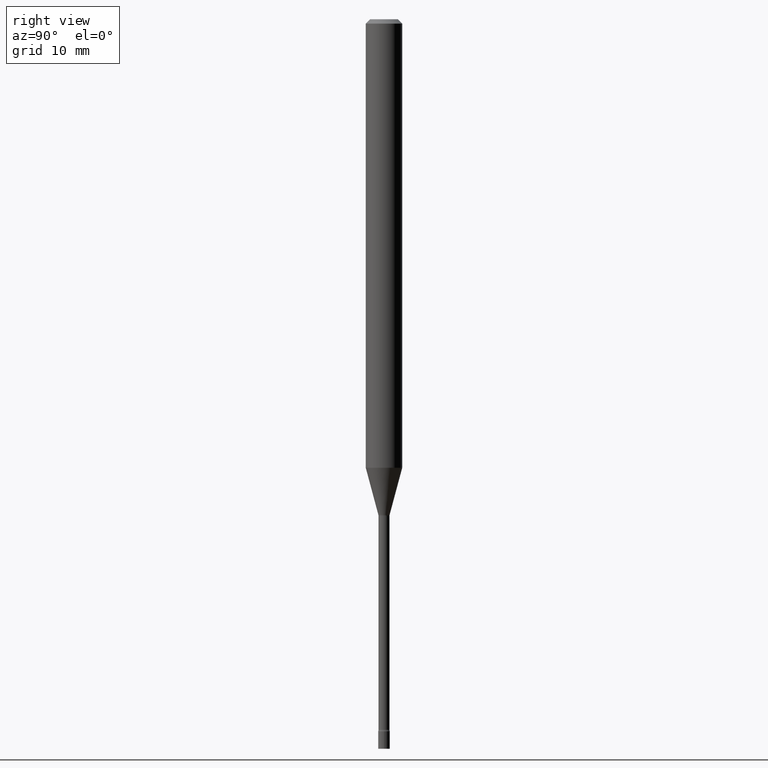
[diagram: clean part render]
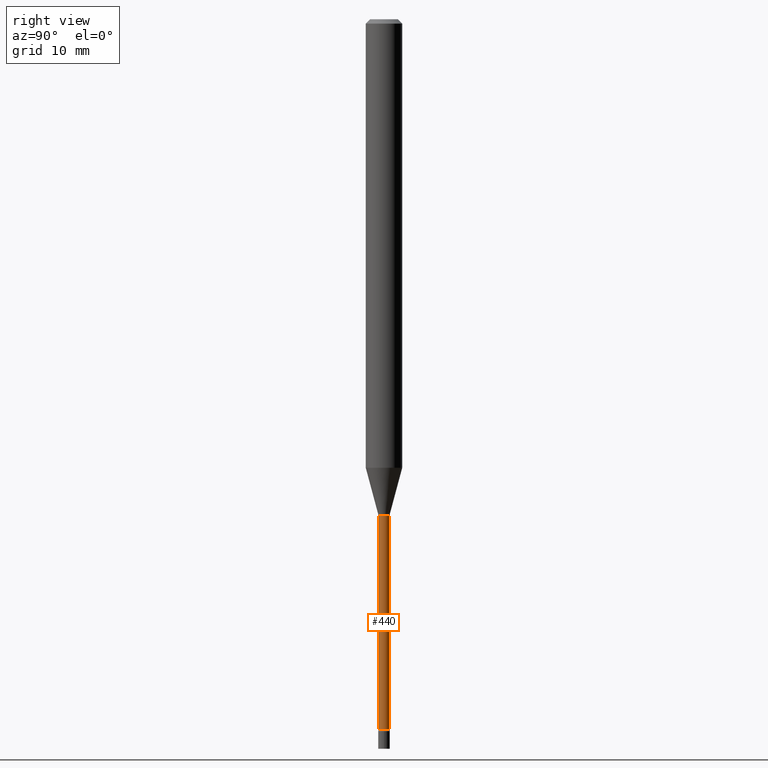
[diagram: same view with one face highlighted and labeled with its STEP entity id]
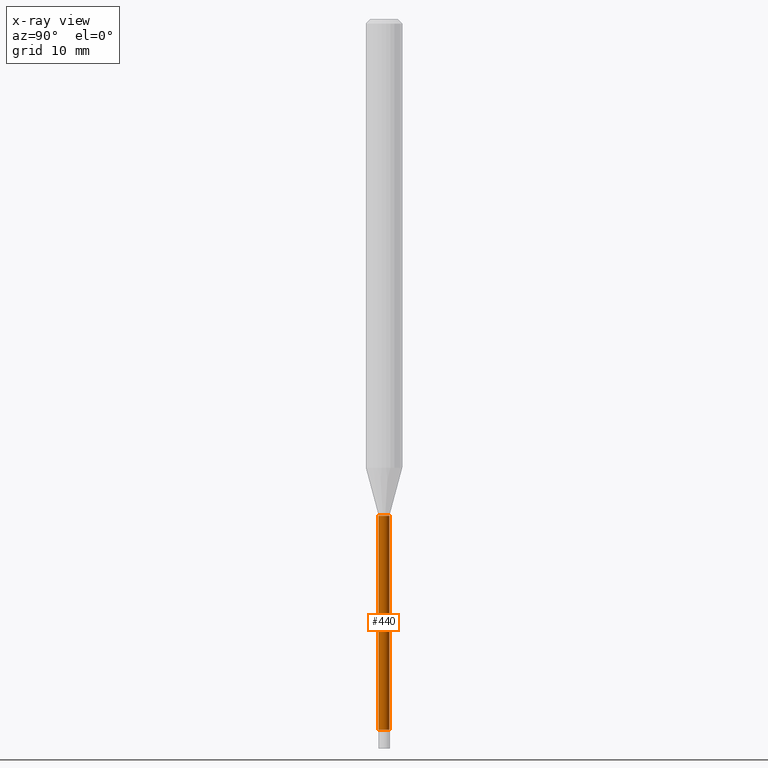
[diagram: x-ray of the same camera — body ghosted, the highlighted face saturated]
A machine part, right view. The second image highlights one B-rep face of the part: STEP entity #440.
The next image is the same camera in x-ray: the body ghosted, the highlighted face saturated — about 0% of this face is hidden behind the body in this view.
In plain terms, the highlighted cylindrical surface (edge-blend (fillet) strip) has radius 0.4775 mm, axis along (-0, 0, 1).
Its self-contained STEP definition (entity closure, byte-faithful):
#8 = VERTEX_POINT ( 'NONE', #252 ) ;
#17 = LINE ( 'NONE', #64, #121 ) ;
#19 = VERTEX_POINT ( 'NONE', #500 ) ;
#50 = FACE_OUTER_BOUND ( 'NONE', #401, .T. ) ;
#55 = DIRECTION ( 'NONE',  ( -2.445425091962523904E-29, 3.491543940097986004E-15, 1.000000000000000000 ) ) ;
#63 = EDGE_CURVE ( 'NONE', #8, #128, #17, .T. ) ;
#64 = CARTESIAN_POINT ( 'NONE',  ( -1.312796983405021220E-16, -0.01880000000000004584, 6.564102607384229912E-17 ) ) ;
#69 = DIRECTION ( 'NONE',  ( -6.982962677686265922E-15, -1.000000000000000000, 0.000000000000000000 ) ) ;
#87 = DIRECTION ( 'NONE',  ( -2.445425091962523904E-29, 3.491543940097986004E-15, 1.000000000000000000 ) ) ;
#89 = LINE ( 'NONE', #99, #169 ) ;
#99 = CARTESIAN_POINT ( 'NONE',  ( 1.335820343228991607E-16, 0.01880000000000004584, -6.564102607384229912E-17 ) ) ;
#121 = VECTOR ( 'NONE', #138, 39.37007874015748143 ) ;
#128 = VERTEX_POINT ( 'NONE', #270 ) ;
#130 = CARTESIAN_POINT ( 'NONE',  ( 0.000000000000000000, 0.000000000000000000, 0.000000000000000000 ) ) ;
#138 = DIRECTION ( 'NONE',  ( -2.445425091962523904E-29, 3.491543940097986004E-15, 1.000000000000000000 ) ) ;
#160 = AXIS2_PLACEMENT_3D ( 'NONE', #352, #429, #69 ) ;
#169 = VECTOR ( 'NONE', #55, 39.37007874015748143 ) ;
#198 = ORIENTED_EDGE ( 'NONE', *, *, #63, .F. ) ;
#235 = CIRCLE ( 'NONE', #512, 0.01880000000000009788 ) ;
#244 = DIRECTION ( 'NONE',  ( -6.982962677686265922E-15, -1.000000000000000000, 3.491543940097986004E-15 ) ) ;
#252 = CARTESIAN_POINT ( 'NONE',  ( -1.312796983404429574E-16, -0.01880000000000859456, -2.434121224617320944 ) ) ;
#264 = EDGE_CURVE ( 'NONE', #128, #452, #357, .T. ) ;
#270 = CARTESIAN_POINT ( 'NONE',  ( -1.312796983404601645E-16, -0.01880000000000594043, -1.701974787463810923 ) ) ;
#328 = DIRECTION ( 'NONE',  ( -6.982962677686265133E-15, -1.000000000000000000, 0.000000000000000000 ) ) ;
#340 = CARTESIAN_POINT ( 'NONE',  ( 1.335820343229586704E-16, 0.01879999999999405758, -1.701974787463810923 ) ) ;
#346 = AXIS2_PLACEMENT_3D ( 'NONE', #130, #87, #244 ) ;
#349 = EDGE_CURVE ( 'NONE', #8, #19, #235, .T. ) ;
#352 = CARTESIAN_POINT ( 'NONE',  ( 4.162051851151586637E-29, -5.942519755368827398E-15, -1.701974787463810923 ) ) ;
#357 = CIRCLE ( 'NONE', #160, 0.01879999999999999727 ) ;
#360 = ORIENTED_EDGE ( 'NONE', *, *, #264, .F. ) ;
#369 = DIRECTION ( 'NONE',  ( -2.445425091962523904E-29, 3.491543940097986004E-15, 1.000000000000000000 ) ) ;
#401 = EDGE_LOOP ( 'NONE', ( #516, #457, #360, #198 ) ) ;
#429 = DIRECTION ( 'NONE',  ( -2.445425091962523904E-29, 3.491543940097986004E-15, 1.000000000000000000 ) ) ;
#440 = ADVANCED_FACE ( 'NONE', ( #50 ), #492, .T. ) ;
#452 = VERTEX_POINT ( 'NONE', #340 ) ;
#457 = ORIENTED_EDGE ( 'NONE', *, *, #466, .T. ) ;
#466 = EDGE_CURVE ( 'NONE', #19, #452, #89, .T. ) ;
#483 = CARTESIAN_POINT ( 'NONE',  ( 5.952461119557742789E-29, -8.498841211276495713E-15, -2.434121224617320944 ) ) ;
#492 = CYLINDRICAL_SURFACE ( 'NONE', #346, 0.01880000000000004584 ) ;
#500 = CARTESIAN_POINT ( 'NONE',  ( 1.378452907375193196E-16, 0.01879999999999159774, -2.434121224617320944 ) ) ;
#512 = AXIS2_PLACEMENT_3D ( 'NONE', #483, #369, #328 ) ;
#516 = ORIENTED_EDGE ( 'NONE', *, *, #349, .T. ) ;